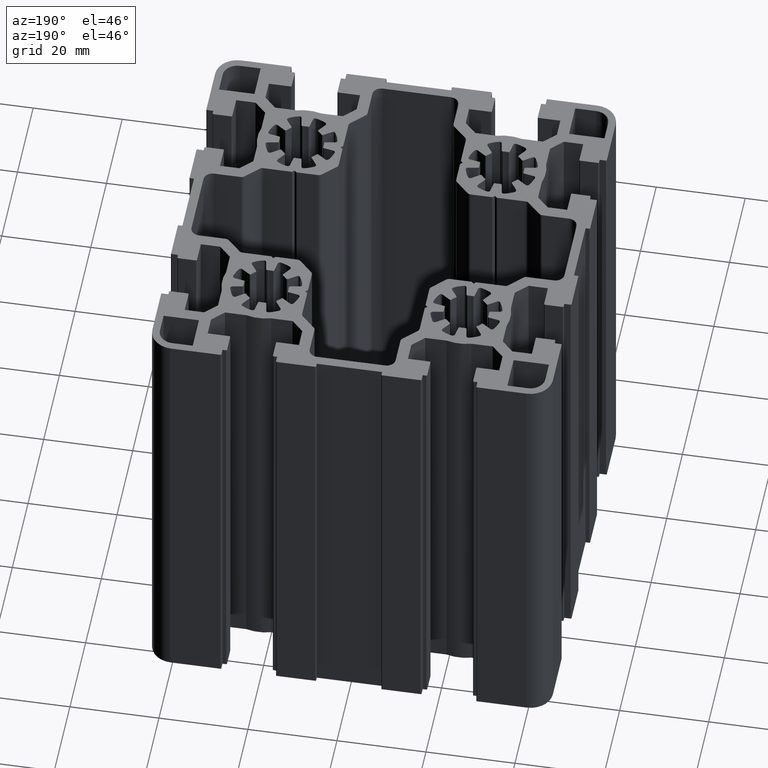
[diagram: clean part render]
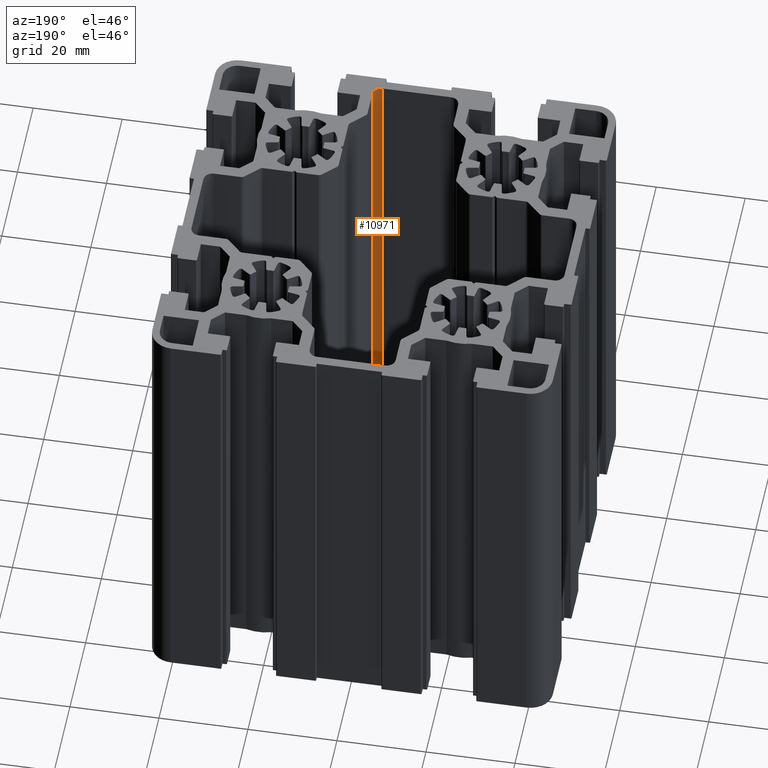
[diagram: same view with one face highlighted and labeled with its STEP entity id]
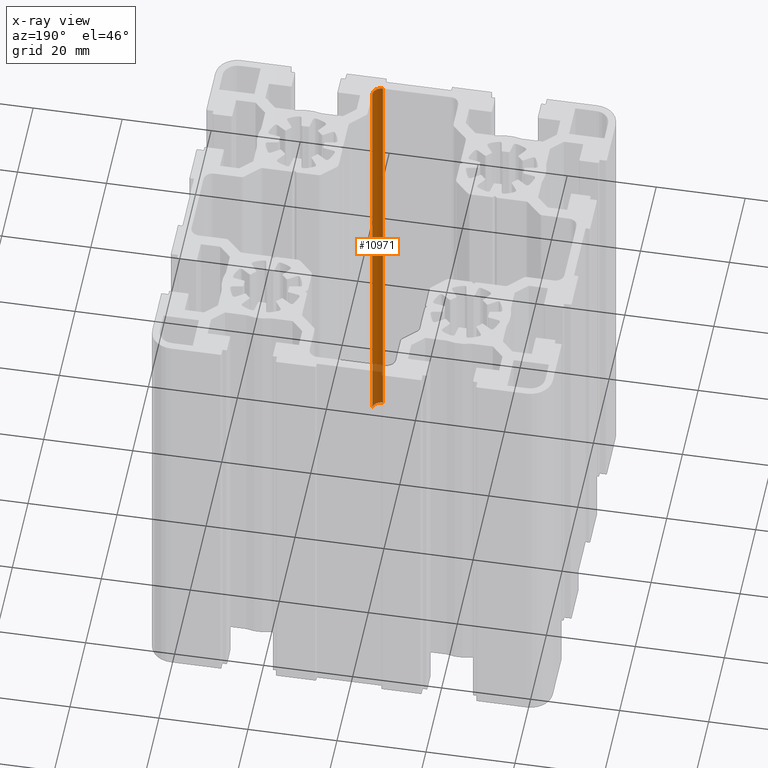
[diagram: x-ray of the same camera — body ghosted, the highlighted face saturated]
A machine part, auxiliary view. The second image highlights one B-rep face of the part: STEP entity #10971.
The next image is the same camera in x-ray: the body ghosted, the highlighted face saturated — about 12% of this face is hidden behind the body in this view.
In plain terms, the highlighted cylindrical surface (edge-blend (fillet) strip) has radius 2 mm, axis along (0, 0, 1).
Its self-contained STEP definition (entity closure, byte-faithful):
#377=FACE_OUTER_BOUND('',#951,.T.);
#951=EDGE_LOOP('',(#7441,#7442,#7443,#7444));
#1577=LINE('',#16504,#2701);
#1578=LINE('',#16510,#2702);
#2701=VECTOR('',#13077,100.);
#2702=VECTOR('',#13084,100.);
#3823=CIRCLE('',#11646,2.);
#3824=CIRCLE('',#11647,2.);
#4449=VERTEX_POINT('',#16500);
#4450=VERTEX_POINT('',#16502);
#4451=VERTEX_POINT('',#16506);
#4452=VERTEX_POINT('',#16508);
#5659=EDGE_CURVE('',#4450,#4449,#1577,.T.);
#5660=EDGE_CURVE('',#4449,#4451,#3823,.T.);
#5661=EDGE_CURVE('',#4452,#4450,#3824,.T.);
#5662=EDGE_CURVE('',#4452,#4451,#1578,.T.);
#7441=ORIENTED_EDGE('',*,*,#5660,.F.);
#7442=ORIENTED_EDGE('',*,*,#5659,.F.);
#7443=ORIENTED_EDGE('',*,*,#5661,.F.);
#7444=ORIENTED_EDGE('',*,*,#5662,.T.);
#10658=CYLINDRICAL_SURFACE('',#11645,2.);
#10971=ADVANCED_FACE('',(#377),#10658,.F.);
#11645=AXIS2_PLACEMENT_3D('',#16505,#13078,#13079);
#11646=AXIS2_PLACEMENT_3D('',#16507,#13080,#13081);
#11647=AXIS2_PLACEMENT_3D('',#16509,#13082,#13083);
#13077=DIRECTION('',(0.,0.,1.));
#13078=DIRECTION('center_axis',(0.,0.,1.));
#13079=DIRECTION('ref_axis',(0.,-1.,0.));
#13080=DIRECTION('center_axis',(0.,0.,-1.));
#13081=DIRECTION('ref_axis',(0.,-1.,0.));
#13082=DIRECTION('center_axis',(0.,0.,1.));
#13083=DIRECTION('ref_axis',(0.,-1.,0.));
#13084=DIRECTION('',(0.,0.,1.));
#16500=CARTESIAN_POINT('',(9.64999939620294,-39.8999998475943,100.));
#16502=CARTESIAN_POINT('',(9.64999939620294,-39.8999998475943,0.));
#16504=CARTESIAN_POINT('',(9.64999939620294,-39.8999998475943,0.));
#16505=CARTESIAN_POINT('Origin',(7.64999939620294,-39.8999998475943,0.));
#16506=CARTESIAN_POINT('',(7.64999939620294,-41.8999998475943,100.));
#16507=CARTESIAN_POINT('Origin',(7.64999939620294,-39.8999998475943,100.));
#16508=CARTESIAN_POINT('',(7.64999939620294,-41.8999998475943,0.));
#16509=CARTESIAN_POINT('Origin',(7.64999939620294,-39.8999998475943,0.));
#16510=CARTESIAN_POINT('',(7.64999939620294,-41.8999998475943,0.));